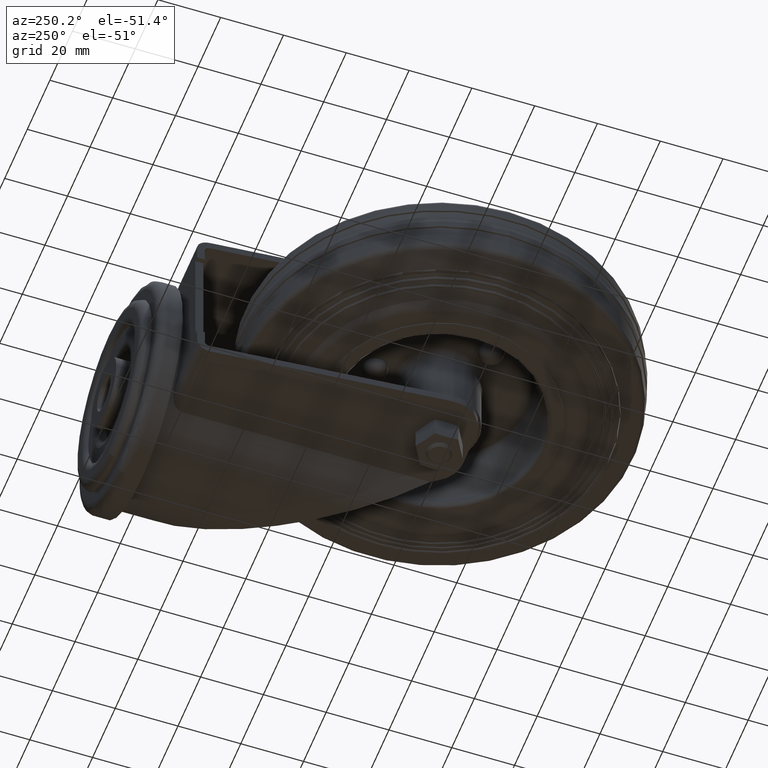
[diagram: clean part render]
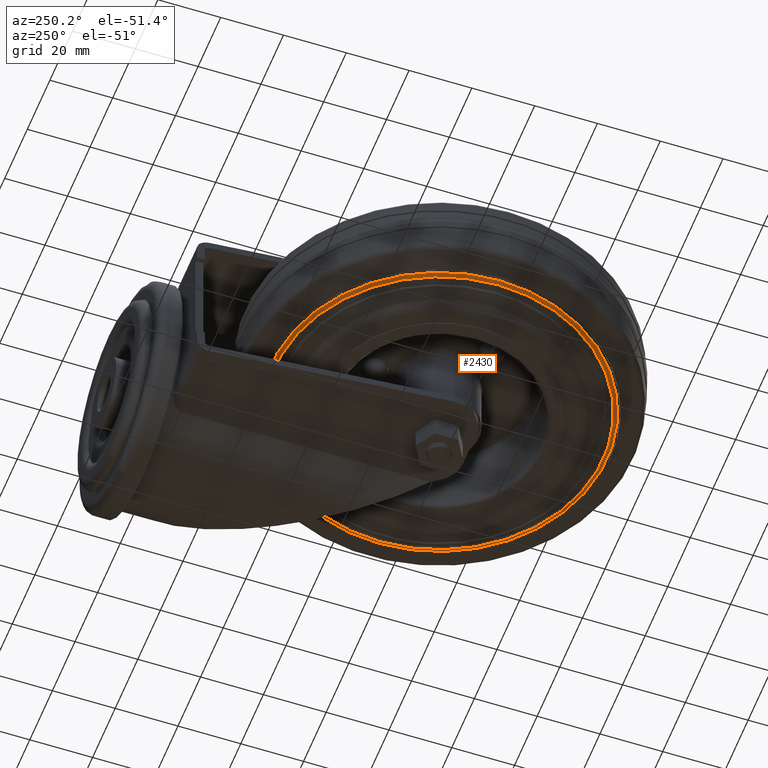
[diagram: same view with one face highlighted and labeled with its STEP entity id]
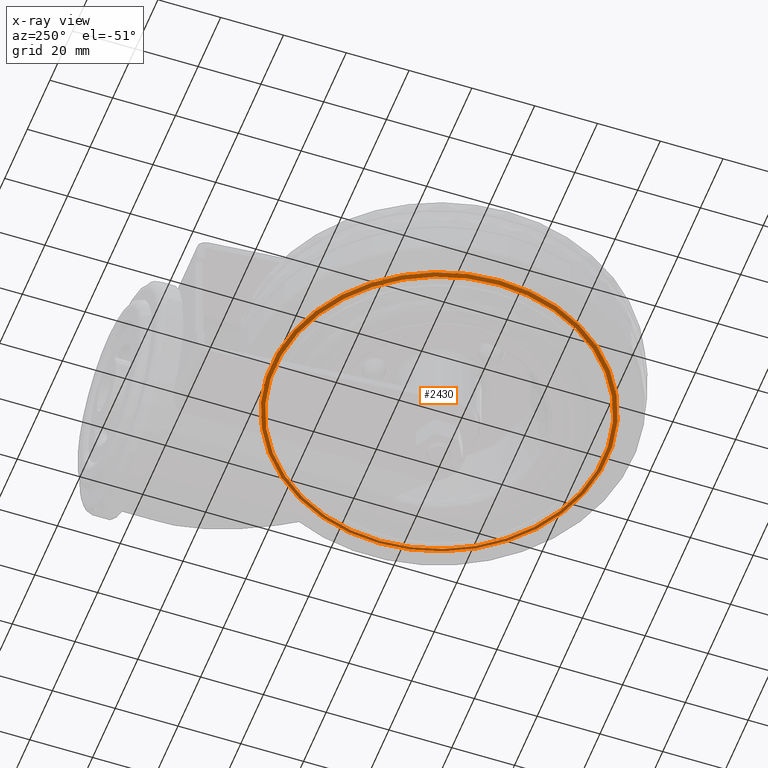
[diagram: x-ray of the same camera — body ghosted, the highlighted face saturated]
A machine part, auxiliary view. The second image highlights one B-rep face of the part: STEP entity #2430.
The next image is the same camera in x-ray: the body ghosted, the highlighted face saturated — about 4% of this face is hidden behind the body in this view.
In plain terms, the highlighted conical surface has half-angle 71 deg.
Its self-contained STEP definition (entity closure, byte-faithful):
#225=CONICAL_SURFACE('',#2911,53.5272407122003,1.23918376891597);
#438=CIRCLE('',#2910,53.5272407122003);
#439=CIRCLE('',#2912,52.2035147063613);
#605=FACE_OUTER_BOUND('',#793,.T.);
#793=EDGE_LOOP('',(#2154,#2155,#2156,#2157));
#922=LINE('',#4506,#1031);
#1031=VECTOR('',#3649,53.5272407122003);
#1222=VERTEX_POINT('',#4501);
#1223=VERTEX_POINT('',#4505);
#1538=EDGE_CURVE('',#1222,#1222,#438,.T.);
#1539=EDGE_CURVE('',#1222,#1223,#922,.T.);
#1540=EDGE_CURVE('',#1223,#1223,#439,.T.);
#2154=ORIENTED_EDGE('',*,*,#1538,.F.);
#2155=ORIENTED_EDGE('',*,*,#1539,.T.);
#2156=ORIENTED_EDGE('',*,*,#1540,.T.);
#2157=ORIENTED_EDGE('',*,*,#1539,.F.);
#2430=ADVANCED_FACE('',(#605),#225,.T.);
#2910=AXIS2_PLACEMENT_3D('',#4503,#3645,#3646);
#2911=AXIS2_PLACEMENT_3D('',#4504,#3647,#3648);
#2912=AXIS2_PLACEMENT_3D('',#4507,#3650,#3651);
#3645=DIRECTION('center_axis',(1.,0.,0.));
#3646=DIRECTION('ref_axis',(0.,0.,-1.));
#3647=DIRECTION('center_axis',(1.,0.,0.));
#3648=DIRECTION('ref_axis',(0.,0.,-1.));
#3649=DIRECTION('',(-0.325568154457161,1.15792629714207E-16,-0.945518575599316));
#3650=DIRECTION('center_axis',(1.,0.,0.));
#3651=DIRECTION('ref_axis',(0.,0.,-1.));
#4501=CARTESIAN_POINT('',(8.66043120980927,-6.5551964005386E-15,53.5272407122003));
#4503=CARTESIAN_POINT('Origin',(8.66043120980927,0.,0.));
#4504=CARTESIAN_POINT('Origin',(8.66043120980927,0.,0.));
#4505=CARTESIAN_POINT('',(8.20463579356925,-6.39308671893871E-15,52.2035147063613));
#4506=CARTESIAN_POINT('',(8.66043120980927,-6.5551964005386E-15,53.5272407122003));
#4507=CARTESIAN_POINT('Origin',(8.20463579356925,0.,0.));